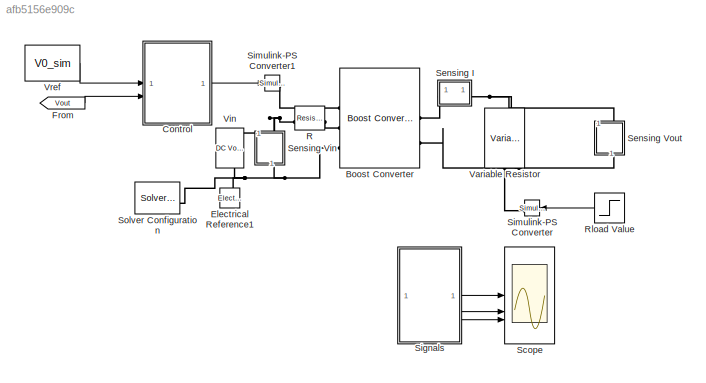
MODEL slx_afb5156e909c
KIND model
CONFIG AbsTol = auto
CONFIG EnableMultiTasking = off
CONFIG FixedStep = auto
CONFIG MaxStep = auto
CONFIG MinStep = auto
CONFIG RelTol = 1e-3
CONFIG SampleTimeConstraint = Unconstrained
CONFIG SolverName = VariableStepAuto
CONFIG StartTime = 0.0
CONFIG StopTime = 0.3
BLOCK [Reference] Boost Converter  REF=ee_lib/Semiconductors &
Converters/Converters/Boost Converter
  SourceBlock = ee_lib/Semiconductors &\nConverters/Converters/Boost Converter
  SourceType = Boost Converter
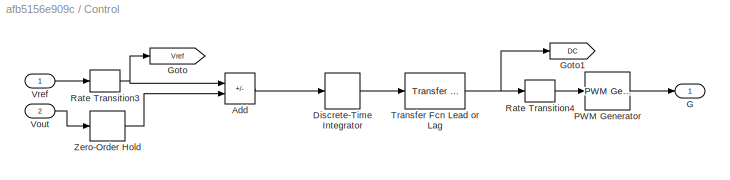
BLOCK [SubSystem] Control
BLOCK [Sum] Control/Add
  IconShape = rectangular
  Inputs = +-
BLOCK [DiscreteIntegrator] Control/Discrete-Time Integrator
  ICPrevOutput = DiscIntNeverNeededParam
  ICPrevScaledInput = DiscIntNeverNeededParam
  InitialConditionSetting = Auto
  SampleTime = -1
  gainval = 0.0010141
BLOCK [Outport] Control/G
  VectorParamsAs1DForOutWhenUnconnected = off
BLOCK [Goto] Control/Goto
  GotoTag = Vref
  TagVisibility = global
BLOCK [Goto] Control/Goto1
  GotoTag = DC
  TagVisibility = global
BLOCK [Reference] Control/PWM Generator  REF=eePwmGenerator/PWM Generator
  SourceBlock = eePwmGenerator/PWM Generator
  SourceType = PWM Generator
BLOCK [RateTransition] Control/Rate Transition3
  OutPortSampleTime = Tsc
BLOCK [RateTransition] Control/Rate Transition4
  OutPortSampleTime = Ts
BLOCK [Reference] Control/Transfer Fcn Lead or Lag  REF=simulink/Discrete/Transfer Fcn
Lead or Lag
  SourceBlock = simulink/Discrete/Transfer Fcn\nLead or Lag
  SourceType = Lead or Lag Compensator
BLOCK [Inport] Control/Vout
  Port = 2
BLOCK [Inport] Control/Vref
BLOCK [ZeroOrderHold] Control/Zero-Order Hold
  SampleTime = Tsc
BLOCK [Reference] Electrical Reference1  REF=fl_lib/Electrical/Electrical Elements/Electrical Reference
  NameLocation = right
  SourceBlock = fl_lib/Electrical/Electrical Elements/Electrical Reference
  SourceType = Electrical Reference
BLOCK [From] From
  GotoTag = Vout
  TagVisibility = global
BLOCK [Reference] R  REF=fl_lib/Electrical/Electrical Elements/Resistor
  SourceBlock = fl_lib/Electrical/Electrical Elements/Resistor
  SourceType = Resistor
BLOCK [Step] Rload Value
  After = RL_sim_final
  Before = RL_sim_initial
  SampleTime = 0
  Time = Resistance_time_step
BLOCK [Scope] Scope
  Floating = off
  NumInputPorts = 4
  ScopeSpecificationString = Simulink.scopes.TimeScopeBlockCfg('CurrentConfiguration', extmgr.ConfigurationSet(extmgr.Configuration('Core','General UI',true),extmgr.Configuration('Core','Source UI',true),extmgr.Configuration('Sources','WiredSimulink',true),extmgr.Configuration('Visuals','Time Domain',true,'SerializedDisplays',{struct('MinYLimReal','-16.25','MaxYLimReal','146.25','YLabelReal','','MinYLimMag','0.00000','MaxYLim...<+3931ch>
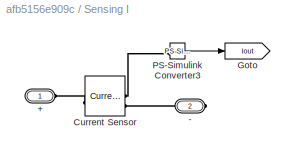
BLOCK [SubSystem] Sensing I
BLOCK [PMIOPort] Sensing I/+
  Side = Left
BLOCK [PMIOPort] Sensing I/-
  Port = 2
  Side = Right
BLOCK [Reference] Sensing I/Current Sensor  REF=fl_lib/Electrical/Electrical Sensors/Current Sensor
  SourceBlock = fl_lib/Electrical/Electrical Sensors/Current Sensor
  SourceType = Current Sensor
BLOCK [Goto] Sensing I/Goto
  GotoTag = Iout
  TagVisibility = global
BLOCK [Reference] Sensing I/PS-Simulink Converter3  REF=nesl_utility/PS-Simulink
Converter
  SourceBlock = nesl_utility/PS-Simulink\nConverter
  SourceType = PS-Simulink\nConverter
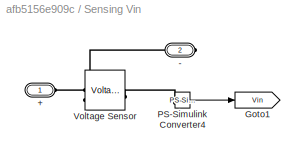
BLOCK [SubSystem] Sensing Vin
  NameLocation = right
BLOCK [PMIOPort] Sensing Vin/+
  Side = Left
BLOCK [PMIOPort] Sensing Vin/-
  Port = 2
  Side = Right
BLOCK [Goto] Sensing Vin/Goto1
  GotoTag = Vin
  TagVisibility = global
BLOCK [Reference] Sensing Vin/PS-Simulink Converter4  REF=nesl_utility/PS-Simulink
Converter
  SourceBlock = nesl_utility/PS-Simulink\nConverter
  SourceType = PS-Simulink\nConverter
BLOCK [Reference] Sensing Vin/Voltage Sensor  REF=fl_lib/Electrical/Electrical Sensors/Voltage Sensor
  SourceBlock = fl_lib/Electrical/Electrical Sensors/Voltage Sensor
  SourceType = Voltage Sensor
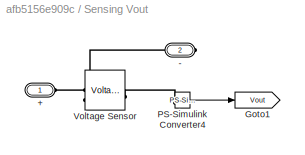
BLOCK [SubSystem] Sensing Vout
  NameLocation = right
BLOCK [PMIOPort] Sensing Vout/+
  Side = Left
BLOCK [PMIOPort] Sensing Vout/-
  Port = 2
  Side = Right
BLOCK [Goto] Sensing Vout/Goto1
  GotoTag = Vout
  TagVisibility = global
BLOCK [Reference] Sensing Vout/PS-Simulink Converter4  REF=nesl_utility/PS-Simulink
Converter
  SourceBlock = nesl_utility/PS-Simulink\nConverter
  SourceType = PS-Simulink\nConverter
BLOCK [Reference] Sensing Vout/Voltage Sensor  REF=fl_lib/Electrical/Electrical Sensors/Voltage Sensor
  SourceBlock = fl_lib/Electrical/Electrical Sensors/Voltage Sensor
  SourceType = Voltage Sensor
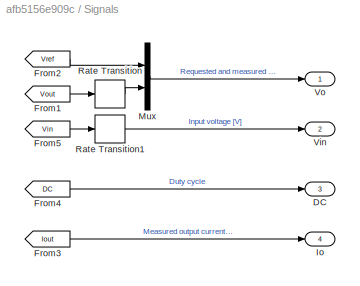
BLOCK [SubSystem] Signals
BLOCK [Outport] Signals/DC
  Port = 3
  VectorParamsAs1DForOutWhenUnconnected = off
BLOCK [From] Signals/From1
  GotoTag = Vout
  TagVisibility = global
BLOCK [From] Signals/From2
  GotoTag = Vref
  TagVisibility = global
BLOCK [From] Signals/From3
  GotoTag = Iout
  TagVisibility = global
BLOCK [From] Signals/From4
  GotoTag = DC
  TagVisibility = global
BLOCK [From] Signals/From5
  GotoTag = Vin
  TagVisibility = global
BLOCK [Outport] Signals/Io
  Port = 4
  VectorParamsAs1DForOutWhenUnconnected = off
BLOCK [Mux] Signals/Mux
  DisplayOption = bar
  Inputs = 2
BLOCK [RateTransition] Signals/Rate Transition
  OutPortSampleTime = Tsc
BLOCK [RateTransition] Signals/Rate Transition1
  OutPortSampleTime = Tsc
BLOCK [Outport] Signals/Vin
  Port = 2
  VectorParamsAs1DForOutWhenUnconnected = off
BLOCK [Outport] Signals/Vo
  VectorParamsAs1DForOutWhenUnconnected = off
BLOCK [Reference] Simulink-PS Converter  REF=nesl_utility/Simulink-PS
Converter
  SourceBlock = nesl_utility/Simulink-PS\nConverter
  SourceType = Simulink-PS\nConverter
BLOCK [Reference] Simulink-PS Converter1  REF=nesl_utility/Simulink-PS
Converter
  SourceBlock = nesl_utility/Simulink-PS\nConverter
  SourceType = Simulink-PS\nConverter
BLOCK [Reference] Solver Configuration  REF=nesl_utility/Solver
Configuration
  SourceBlock = nesl_utility/Solver\nConfiguration
  SourceType = Solver\nConfiguration
BLOCK [Reference] Variable Resistor  REF=fl_lib/Electrical/Electrical Elements/Variable Resistor
  NameLocation = right
  SourceBlock = fl_lib/Electrical/Electrical Elements/Variable Resistor
  SourceType = Variable Resistor
BLOCK [Reference] Vin  REF=fl_lib/Electrical/Electrical Sources/DC Voltage Source
  NameLocation = left
  SourceBlock = fl_lib/Electrical/Electrical Sources/DC Voltage Source
  SourceType = DC Voltage Source
BLOCK [Constant] Vref
  SampleTime = Ts
  Value = V0_sim
LINE Control/Add:1 -> Control/Discrete-Time Integrator:1
LINE Control/Discrete-Time Integrator:1 -> Control/Transfer Fcn Lead or Lag:1
LINE Control/PWM Generator:1 -> Control/G:1
NET Control/Rate Transition3:1 -> Control/Add:1, Control/Goto:1
LINE Control/Rate Transition4:1 -> Control/PWM Generator:1
NET Control/Transfer Fcn Lead or Lag:1 -> Control/Goto1:1, Control/Rate Transition4:1
LINE Control/Vout:1 -> Control/Zero-Order Hold:1
LINE Control/Vref:1 -> Control/Rate Transition3:1
LINE Control/Zero-Order Hold:1 -> Control/Add:2
LINE Control:1 -> Simulink-PS Converter1:1
LINE From:1 -> Control:2
LINE Rload Value:1 -> Simulink-PS Converter:1
LINE Sensing I/PS-Simulink Converter3:1 -> Sensing I/Goto:1
LINE Sensing Vin/PS-Simulink Converter4:1 -> Sensing Vin/Goto1:1
LINE Sensing Vout/PS-Simulink Converter4:1 -> Sensing Vout/Goto1:1
LINE Signals/From1:1 -> Signals/Rate Transition:1
LINE Signals/From2:1 -> Signals/Mux:1
LINE Signals/From3:1 -> Signals/Io:1
LINE Signals/From4:1 -> Signals/DC:1
LINE Signals/From5:1 -> Signals/Rate Transition1:1
LINE Signals/Mux:1 -> Signals/Vo:1
LINE Signals/Rate Transition1:1 -> Signals/Vin:1
LINE Signals/Rate Transition:1 -> Signals/Mux:2
LINE Signals:1 -> Scope:1
LINE Signals:2 -> Scope:2
LINE Signals:3 -> Scope:3
LINE Vref:1 -> Control:1
PLINE Boost Converter:LConn1 -- Simulink-PS Converter1:RConn1
PLINE Boost Converter:LConn2 -- R:RConn1
PNET net1: Boost Converter:LConn3 -- Electrical Reference1:LConn1 -- Sensing Vin:RConn1 -- Solver Configuration:RConn1 -- Vin:RConn1
PLINE Boost Converter:RConn1 -- Sensing I:LConn1
PNET net2: Boost Converter:RConn2 -- Sensing Vout:RConn1 -- Variable Resistor:LConn2
PNET net3: R:LConn1 -- Sensing Vin:LConn1 -- Vin:LConn1
PLINE Sensing I/+:RConn1 -- Sensing I/Current Sensor:LConn1
PLINE Sensing I/-:RConn1 -- Sensing I/Current Sensor:RConn2
PLINE Sensing I/Current Sensor:RConn1 -- Sensing I/PS-Simulink Converter3:LConn1
PNET net4: Sensing I:RConn1 -- Sensing Vout:LConn1 -- Variable Resistor:RConn1
PLINE Sensing Vin/+:RConn1 -- Sensing Vin/Voltage Sensor:LConn1
PLINE Sensing Vin/-:RConn1 -- Sensing Vin/Voltage Sensor:RConn2
PLINE Sensing Vin/PS-Simulink Converter4:LConn1 -- Sensing Vin/Voltage Sensor:RConn1
PLINE Sensing Vout/+:RConn1 -- Sensing Vout/Voltage Sensor:LConn1
PLINE Sensing Vout/-:RConn1 -- Sensing Vout/Voltage Sensor:RConn2
PLINE Sensing Vout/PS-Simulink Converter4:LConn1 -- Sensing Vout/Voltage Sensor:RConn1
PLINE Simulink-PS Converter:RConn1 -- Variable Resistor:LConn1
note: NET lines group one-source signal fan-out (src -> all destinations, sorted); 1:1 wires keep LINE; PNET lines group multi-terminal physical nets as a canonical sorted terminal list (undirected conserving connections); 2-terminal nets keep the pairwise PLINE form
